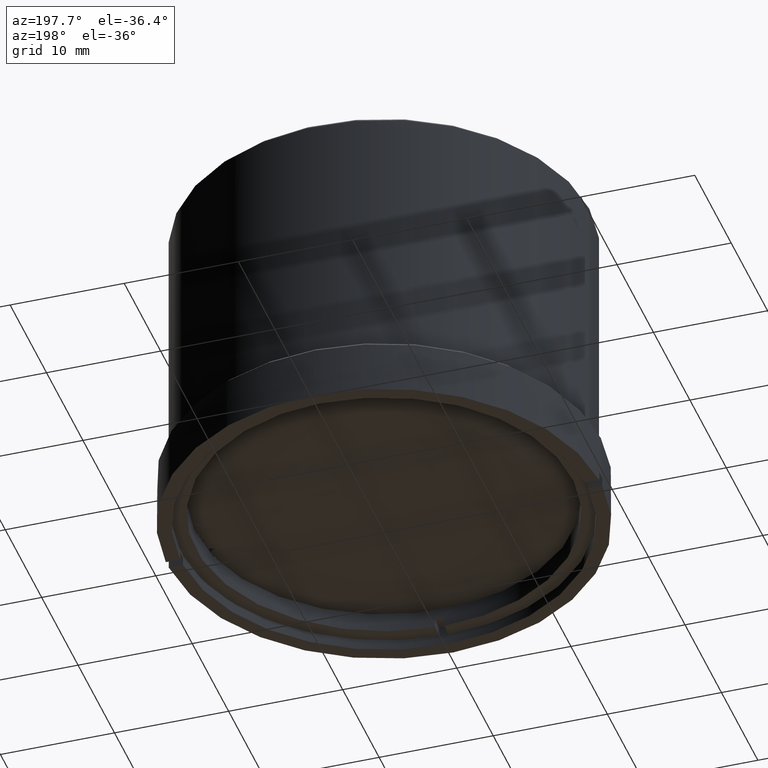
[diagram: clean part render]
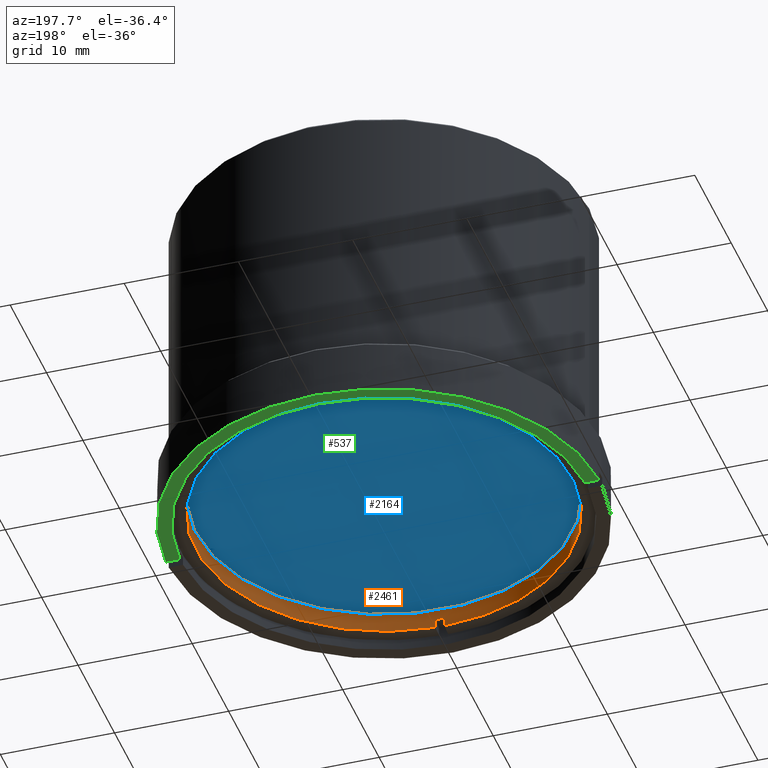
[diagram: same view with three faces highlighted in distinct colors, each labeled with its STEP entity id]
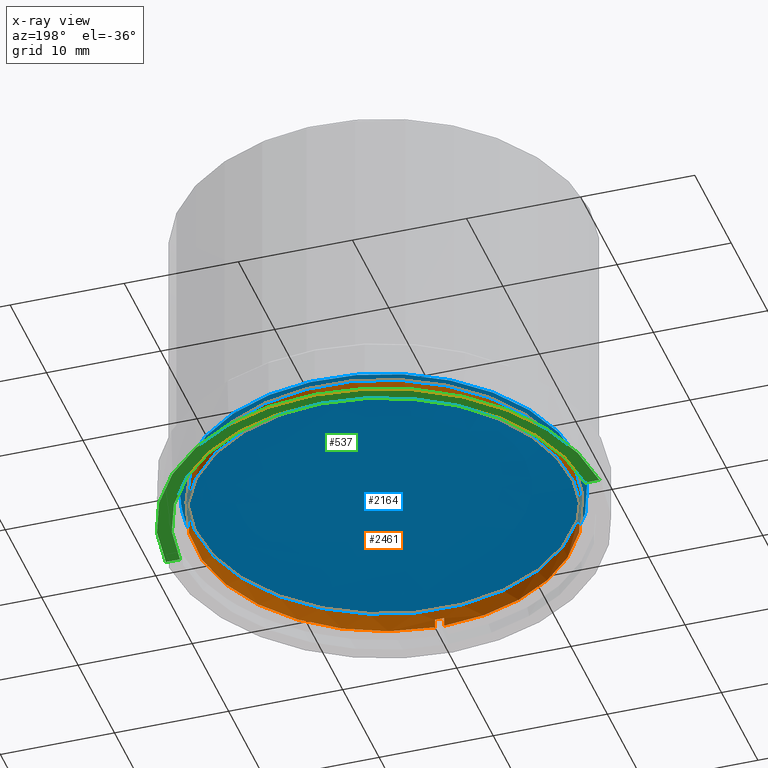
[diagram: x-ray of the same camera — body ghosted, the three highlighted faces saturated]
A machine part, auxiliary view with three faces highlighted in distinct colors.
The next image is the same camera in x-ray (body ghosted, the three faces saturated) — at least one of them is partly hidden behind the body in this view.
Their STEP definitions:

[orange] entity #2461 — the highlighted cylindrical surface (bore or boss wall) has radius 16.5 mm, axis along (0, -0, -1).
#28 = CARTESIAN_POINT ( 'NONE',  ( 0.000000000000000000, 0.000000000000000000, 173.0372901561294725 ) ) ;
#66 = DIRECTION ( 'NONE',  ( -0.000000000000000000, -0.000000000000000000, -1.000000000000000000 ) ) ;
#76 = ORIENTED_EDGE ( 'NONE', *, *, #971, .F. ) ;
#89 = CARTESIAN_POINT ( 'NONE',  ( 0.4000000000000001887, -16.49515080258436939, 193.8792013154986478 ) ) ;
#96 = CIRCLE ( 'NONE', #1657, 16.49999999999999289 ) ;
#169 = ORIENTED_EDGE ( 'NONE', *, *, #298, .F. ) ;
#177 = CARTESIAN_POINT ( 'NONE',  ( 0.000000000000000000, 0.000000000000000000, 193.8792013154986478 ) ) ;
#182 = EDGE_LOOP ( 'NONE', ( #749, #1570, #2250, #2525, #169, #313, #2363, #1100 ) ) ;
#193 = AXIS2_PLACEMENT_3D ( 'NONE', #28, #892, #671 ) ;
#286 = VERTEX_POINT ( 'NONE', #1212 ) ;
#298 = EDGE_CURVE ( 'NONE', #1770, #286, #96, .T. ) ;
#302 = CARTESIAN_POINT ( 'NONE',  ( -0.3999999999999941380, -16.49515080258436939, 173.0372901561294725 ) ) ;
#313 = ORIENTED_EDGE ( 'NONE', *, *, #2127, .F. ) ;
#314 = LINE ( 'NONE', #302, #2730 ) ;
#346 = EDGE_CURVE ( 'NONE', #1591, #1434, #314, .T. ) ;
#352 = VERTEX_POINT ( 'NONE', #89 ) ;
#368 = AXIS2_PLACEMENT_3D ( 'NONE', #1136, #887, #444 ) ;
#384 = CARTESIAN_POINT ( 'NONE',  ( 0.4000000000000000222, 16.49515080258436939, 193.8792013154986478 ) ) ;
#414 = CIRCLE ( 'NONE', #960, 16.49999999999999289 ) ;
#444 = DIRECTION ( 'NONE',  ( -1.000000000000000000, 2.131628207280300558E-14, 0.000000000000000000 ) ) ;
#474 = LINE ( 'NONE', #1508, #1307 ) ;
#568 = DIRECTION ( 'NONE',  ( -1.000000000000000000, 0.000000000000000000, 0.000000000000000000 ) ) ;
#599 = VECTOR ( 'NONE', #1876, 1000.000000000000000 ) ;
#671 = DIRECTION ( 'NONE',  ( -1.000000000000000000, 0.000000000000000000, 0.000000000000000000 ) ) ;
#749 = ORIENTED_EDGE ( 'NONE', *, *, #1463, .F. ) ;
#774 = EDGE_CURVE ( 'NONE', #286, #2088, #2289, .T. ) ;
#794 = CARTESIAN_POINT ( 'NONE',  ( 0.4000000000000001887, -16.49515080258436939, 173.0372901561294725 ) ) ;
#866 = CIRCLE ( 'NONE', #368, 16.49999999999999289 ) ;
#887 = DIRECTION ( 'NONE',  ( 0.000000000000000000, 0.000000000000000000, 1.000000000000000000 ) ) ;
#892 = DIRECTION ( 'NONE',  ( -0.000000000000000000, -0.000000000000000000, -1.000000000000000000 ) ) ;
#960 = AXIS2_PLACEMENT_3D ( 'NONE', #2330, #2100, #2757 ) ;
#971 = EDGE_CURVE ( 'NONE', #2453, #2453, #2515, .T. ) ;
#1097 = CARTESIAN_POINT ( 'NONE',  ( -0.3999999999999969136, -16.49515080258436939, 193.0792013154986648 ) ) ;
#1100 = ORIENTED_EDGE ( 'NONE', *, *, #346, .F. ) ;
#1136 = CARTESIAN_POINT ( 'NONE',  ( 0.000000000000000000, 0.000000000000000000, 193.8792013154986478 ) ) ;
#1212 = CARTESIAN_POINT ( 'NONE',  ( 0.3999999999999999667, 16.49515080258436939, 193.0792013154986648 ) ) ;
#1307 = VECTOR ( 'NONE', #66, 1000.000000000000000 ) ;
#1311 = CARTESIAN_POINT ( 'NONE',  ( -16.49999999999999289, 0.000000000000000000, 194.8292013154986648 ) ) ;
#1314 = FACE_OUTER_BOUND ( 'NONE', #2618, .T. ) ;
#1335 = VERTEX_POINT ( 'NONE', #1584 ) ;
#1403 = CARTESIAN_POINT ( 'NONE',  ( 0.4000000000000012434, -16.49515080258436583, 193.0792013154986648 ) ) ;
#1434 = VERTEX_POINT ( 'NONE', #2073 ) ;
#1449 = CIRCLE ( 'NONE', #1981, 16.49999999999999289 ) ;
#1451 = LINE ( 'NONE', #794, #599 ) ;
#1463 = EDGE_CURVE ( 'NONE', #1335, #1591, #414, .T. ) ;
#1482 = DIRECTION ( 'NONE',  ( 0.000000000000000000, 0.000000000000000000, 1.000000000000000000 ) ) ;
#1485 = VECTOR ( 'NONE', #1875, 1000.000000000000000 ) ;
#1498 = DIRECTION ( 'NONE',  ( -1.000000000000000000, 0.000000000000000000, 0.000000000000000000 ) ) ;
#1508 = CARTESIAN_POINT ( 'NONE',  ( -0.3999999999999981903, 16.49515080258436939, 173.0372901561294725 ) ) ;
#1517 = DIRECTION ( 'NONE',  ( -1.000000000000000000, 0.000000000000000000, 0.000000000000000000 ) ) ;
#1529 = CARTESIAN_POINT ( 'NONE',  ( 0.000000000000000000, 0.000000000000000000, 194.8292013154986648 ) ) ;
#1570 = ORIENTED_EDGE ( 'NONE', *, *, #1993, .F. ) ;
#1584 = CARTESIAN_POINT ( 'NONE',  ( -0.3999999999999986899, 16.49515080258436939, 193.0792013154986648 ) ) ;
#1591 = VERTEX_POINT ( 'NONE', #1097 ) ;
#1621 = CARTESIAN_POINT ( 'NONE',  ( 0.000000000000000000, 0.000000000000000000, 193.0792013154986648 ) ) ;
#1625 = VERTEX_POINT ( 'NONE', #2247 ) ;
#1657 = AXIS2_PLACEMENT_3D ( 'NONE', #1621, #2487, #568 ) ;
#1689 = CYLINDRICAL_SURFACE ( 'NONE', #193, 16.49999999999999289 ) ;
#1770 = VERTEX_POINT ( 'NONE', #1403 ) ;
#1867 = EDGE_CURVE ( 'NONE', #2088, #1625, #866, .T. ) ;
#1875 = DIRECTION ( 'NONE',  ( 0.000000000000000000, 0.000000000000000000, 1.000000000000000000 ) ) ;
#1876 = DIRECTION ( 'NONE',  ( -0.000000000000000000, -0.000000000000000000, -1.000000000000000000 ) ) ;
#1949 = FACE_OUTER_BOUND ( 'NONE', #182, .T. ) ;
#1981 = AXIS2_PLACEMENT_3D ( 'NONE', #177, #1482, #1498 ) ;
#1993 = EDGE_CURVE ( 'NONE', #1625, #1335, #474, .T. ) ;
#2073 = CARTESIAN_POINT ( 'NONE',  ( -0.3999999999999935829, -16.49515080258436939, 193.8792013154986478 ) ) ;
#2088 = VERTEX_POINT ( 'NONE', #384 ) ;
#2100 = DIRECTION ( 'NONE',  ( 0.000000000000000000, 0.000000000000000000, 1.000000000000000000 ) ) ;
#2127 = EDGE_CURVE ( 'NONE', #352, #1770, #1451, .T. ) ;
#2247 = CARTESIAN_POINT ( 'NONE',  ( -0.3999999999999989675, 16.49515080258436939, 193.8792013154986478 ) ) ;
#2250 = ORIENTED_EDGE ( 'NONE', *, *, #1867, .F. ) ;
#2251 = DIRECTION ( 'NONE',  ( 0.000000000000000000, 0.000000000000000000, 1.000000000000000000 ) ) ;
#2254 = AXIS2_PLACEMENT_3D ( 'NONE', #1529, #2588, #1517 ) ;
#2289 = LINE ( 'NONE', #2760, #1485 ) ;
#2330 = CARTESIAN_POINT ( 'NONE',  ( 0.000000000000000000, 0.000000000000000000, 193.0792013154986648 ) ) ;
#2363 = ORIENTED_EDGE ( 'NONE', *, *, #2709, .F. ) ;
#2453 = VERTEX_POINT ( 'NONE', #1311 ) ;
#2461 = ADVANCED_FACE ( 'NONE', ( #1949, #1314 ), #1689, .F. ) ;
#2487 = DIRECTION ( 'NONE',  ( 0.000000000000000000, 0.000000000000000000, 1.000000000000000000 ) ) ;
#2515 = CIRCLE ( 'NONE', #2254, 16.49999999999999289 ) ;
#2525 = ORIENTED_EDGE ( 'NONE', *, *, #774, .F. ) ;
#2588 = DIRECTION ( 'NONE',  ( -0.000000000000000000, -0.000000000000000000, -1.000000000000000000 ) ) ;
#2618 = EDGE_LOOP ( 'NONE', ( #76 ) ) ;
#2709 = EDGE_CURVE ( 'NONE', #1434, #352, #1449, .T. ) ;
#2730 = VECTOR ( 'NONE', #2251, 1000.000000000000000 ) ;
#2757 = DIRECTION ( 'NONE',  ( -1.000000000000000000, 0.000000000000000000, 0.000000000000000000 ) ) ;
#2760 = CARTESIAN_POINT ( 'NONE',  ( 0.3999999999999998557, 16.49515080258436939, 173.0372901561294725 ) ) ;

[blue] entity #2164 — the highlighted face is a freeform B-spline surface patch.
#103 = CARTESIAN_POINT ( 'NONE',  ( -17.00000000000000000, 0.000000000000000000, 2.719212056980059966 ) ) ;
#158 = CARTESIAN_POINT ( 'NONE',  ( 17.28991034035671248, 3.469446951953614189E-15, 2.815292392986987746 ) ) ;
#325 = CARTESIAN_POINT ( 'NONE',  ( 0.000000000000000000, 0.000000000000000000, 2.719212056980059966 ) ) ;
#411 = CARTESIAN_POINT ( 'NONE',  ( 27.64194707079962754, 19.74373835535002897, 10.25001160613913953 ) ) ;
#595 = CARTESIAN_POINT ( 'NONE',  ( -4.638900653483567282, 7.750168308865976741, -0.5487911481949637738 ) ) ;
#622 = CARTESIAN_POINT ( 'NONE',  ( 13.27122800318624307, -23.00439613573182029, 5.442623585397479147 ) ) ;
#806 = CARTESIAN_POINT ( 'NONE',  ( 4.049176320177816812, -3.758227020300565435, -1.614085553582661037 ) ) ;
#851 = CARTESIAN_POINT ( 'NONE',  ( -1.769752173187300714, -20.95151807214567441, 0.4110153840328079622 ) ) ;
#1006 = CARTESIAN_POINT ( 'NONE',  ( 17.28991034035672669, 2.647856146135734781E-15, 2.815292392986997960 ) ) ;
#1059 = CARTESIAN_POINT ( 'NONE',  ( 17.28991034035671603, -9.725585166750842478E-16, 2.815292392986989078 ) ) ;
#1102 = CARTESIAN_POINT ( 'NONE',  ( -8.268664292441469499, 32.19119659690471735, 5.772221602480928304 ) ) ;
#1122 = VERTEX_POINT ( 'NONE', #103 ) ;
#1135 =( BOUNDED_SURFACE ( )  B_SPLINE_SURFACE ( 3, 3, ( 
 ( #1652, #1894, #1006, #1856, #2081, #1059, #158 ),
 ( #1865, #2721, #806, #2748, #1466, #1683, #2538 ),
 ( #622, #851, #1695, #595, #2335, #2550, #411 ),
 ( #1264, #2121, #1909, #2761, #1102, #2378, #1291 ) ),
 .UNSPECIFIED., .F., .F., .T. ) 
 B_SPLINE_SURFACE_WITH_KNOTS ( ( 4, 4 ),
 ( 4, 3, 4 ),
 ( 0.000000000000000000, 1.000000000000000000 ),
 ( 0.000000000000000000, 0.5000000000000000000, 1.000000000000000000 ),
 .UNSPECIFIED. ) 
 GEOMETRIC_REPRESENTATION_ITEM ( )  RATIONAL_B_SPLINE_SURFACE ( (
 ( 1.000000000000000000, 0.7522312393163147481, 0.7522312393163147481, 1.000000000000000000, 0.7522312393163147481, 0.7522312393163147481, 1.000000000000000000),
 ( 0.9657484377972049838, 0.7264661442319864104, 0.7264661442319864104, 0.9657484377972049838, 0.7264661442319864104, 0.7264661442319864104, 0.9657484377972049838),
 ( 0.9657484377972049838, 0.7264661442319864104, 0.7264661442319864104, 0.9657484377972049838, 0.7264661442319864104, 0.7264661442319864104, 0.9657484377972049838),
 ( 1.000000000000000000, 0.7522312393163147481, 0.7522312393163147481, 1.000000000000000000, 0.7522312393163147481, 0.7522312393163147481, 1.000000000000000000) ) ) 
 REPRESENTATION_ITEM ( '' )  SURFACE ( )  );
#1264 = CARTESIAN_POINT ( 'NONE',  ( 9.845227713934697533, -32.44605139639171654, 11.83180059993767230 ) ) ;
#1291 = CARTESIAN_POINT ( 'NONE',  ( 30.11409661706781193, 27.84712737751759448, 18.61227672645955877 ) ) ;
#1320 = EDGE_CURVE ( 'NONE', #1122, #1122, #2294, .T. ) ;
#1466 = CARTESIAN_POINT ( 'NONE',  ( 9.250078473449322658, 11.71273610109673946, 0.1257546444652254680 ) ) ;
#1652 = CARTESIAN_POINT ( 'NONE',  ( 17.28991034035671603, 8.295447662121091525E-15, 2.815292392987001069 ) ) ;
#1683 = CARTESIAN_POINT ( 'NONE',  ( 16.59089827581896870, 14.44013152919473342, 2.581454252417818118 ) ) ;
#1695 = CARTESIAN_POINT ( 'NONE',  ( -9.706198539045002960, -7.323366320764058024, -2.243937162668081076 ) ) ;
#1741 = EDGE_LOOP ( 'NONE', ( #2759 ) ) ;
#1811 = DIRECTION ( 'NONE',  ( -1.000000000000000000, 0.000000000000000000, 0.000000000000000000 ) ) ;
#1856 = CARTESIAN_POINT ( 'NONE',  ( 17.28991034035671959, 0.000000000000000000, 2.815292392986995740 ) ) ;
#1865 = CARTESIAN_POINT ( 'NONE',  ( 15.84080075976688029, -11.80546477620215207, 2.330526668621162312 ) ) ;
#1894 = CARTESIAN_POINT ( 'NONE',  ( 17.28991034035671603, 6.777746642311721337E-15, 2.815292392987000625 ) ) ;
#1909 = CARTESIAN_POINT ( 'NONE',  ( -22.56278500447146484, -10.32908312985611410, 0.9904577704320814968 ) ) ;
#2063 = FACE_OUTER_BOUND ( 'NONE', #1741, .T. ) ;
#2081 = CARTESIAN_POINT ( 'NONE',  ( 17.28991034035671248, -1.897126274761713130E-15, 2.815292392986994408 ) ) ;
#2121 = CARTESIAN_POINT ( 'NONE',  ( -11.36899642719379244, -29.55061407351489677, 4.735077984628271786 ) ) ;
#2164 = ADVANCED_FACE ( 'N', ( #2063 ), #1135, .T. ) ;
#2294 = CIRCLE ( 'NONE', #2435, 17.00000000000000000 ) ;
#2335 = CARTESIAN_POINT ( 'NONE',  ( 0.4283972320778678400, 22.82370293849600884, 1.146354866278152862 ) ) ;
#2378 = CARTESIAN_POINT ( 'NONE',  ( 11.90679013604218284, 39.68714986227203667, 12.52144810090274163 ) ) ;
#2433 = DIRECTION ( 'NONE',  ( -0.000000000000000000, -0.000000000000000000, 1.000000000000000000 ) ) ;
#2435 = AXIS2_PLACEMENT_3D ( 'NONE', #325, #2433, #1811 ) ;
#2538 = CARTESIAN_POINT ( 'NONE',  ( 23.21560932941636324, 10.13215066934950670, 4.797596423877589444 ) ) ;
#2550 = CARTESIAN_POINT ( 'NONE',  ( 14.73288501769660108, 28.13836746345632278, 5.931586760373590117 ) ) ;
#2721 = CARTESIAN_POINT ( 'NONE',  ( 8.122025590705739262, -10.75196267484245816, -0.2516090691909735333 ) ) ;
#2748 = CARTESIAN_POINT ( 'NONE',  ( 6.649627396813568403, 3.977254540398087013, -0.7441654545587177427 ) ) ;
#2759 = ORIENTED_EDGE ( 'NONE', *, *, #1320, .F. ) ;
#2761 = CARTESIAN_POINT ( 'NONE',  ( -15.41572464845646451, 10.93105673352430252, 3.381339686456505067 ) ) ;

[green] entity #537 — the highlighted planar face has unit normal (0, 0, -1).
#15 = ORIENTED_EDGE ( 'NONE', *, *, #1286, .T. ) ;
#53 = DIRECTION ( 'NONE',  ( -1.000000000000000000, 0.000000000000000000, 0.000000000000000000 ) ) ;
#88 = VERTEX_POINT ( 'NONE', #1168 ) ;
#268 = ORIENTED_EDGE ( 'NONE', *, *, #2518, .F. ) ;
#343 = CARTESIAN_POINT ( 'NONE',  ( 0.000000000000000000, 17.75000000000000355, 210.6772689990073673 ) ) ;
#417 = VERTEX_POINT ( 'NONE', #2643 ) ;
#537 = ADVANCED_FACE ( 'NONE', ( #2436 ), #2039, .T. ) ;
#550 = DIRECTION ( 'NONE',  ( -1.000000000000000000, 0.000000000000000000, -0.000000000000000000 ) ) ;
#551 = VECTOR ( 'NONE', #550, 1000.000000000000000 ) ;
#554 = DIRECTION ( 'NONE',  ( -1.000000000000000000, 0.000000000000000000, 0.000000000000000000 ) ) ;
#555 = EDGE_CURVE ( 'NONE', #1913, #88, #2111, .T. ) ;
#619 = EDGE_LOOP ( 'NONE', ( #1189, #268, #15, #2116 ) ) ;
#824 = CIRCLE ( 'NONE', #1265, 18.99999999999999645 ) ;
#905 = DIRECTION ( 'NONE',  ( 0.000000000000000000, 0.000000000000000000, 1.000000000000000000 ) ) ;
#1039 = AXIS2_PLACEMENT_3D ( 'NONE', #1367, #1413, #554 ) ;
#1073 = CARTESIAN_POINT ( 'NONE',  ( 17.74549238539184515, 0.4000000000000005218, 210.6772689990073673 ) ) ;
#1159 = DIRECTION ( 'NONE',  ( 0.000000000000000000, 0.000000000000000000, -1.000000000000000000 ) ) ;
#1166 = CARTESIAN_POINT ( 'NONE',  ( -18.99578900704047868, 0.4000000000000000222, 210.6772689990073673 ) ) ;
#1168 = CARTESIAN_POINT ( 'NONE',  ( -17.74549238539185225, 0.4000000000000001332, 210.6772689990073673 ) ) ;
#1189 = ORIENTED_EDGE ( 'NONE', *, *, #1390, .T. ) ;
#1213 = LINE ( 'NONE', #2474, #551 ) ;
#1265 = AXIS2_PLACEMENT_3D ( 'NONE', #1331, #905, #53 ) ;
#1286 = EDGE_CURVE ( 'NONE', #417, #1913, #2226, .T. ) ;
#1331 = CARTESIAN_POINT ( 'NONE',  ( 0.000000000000000000, 0.000000000000000000, 210.6772689990073673 ) ) ;
#1367 = CARTESIAN_POINT ( 'NONE',  ( 0.000000000000000000, 0.000000000000000000, 210.6772689990073673 ) ) ;
#1390 = EDGE_CURVE ( 'NONE', #88, #1598, #1213, .T. ) ;
#1413 = DIRECTION ( 'NONE',  ( 0.000000000000000000, 0.000000000000000000, 1.000000000000000000 ) ) ;
#1598 = VERTEX_POINT ( 'NONE', #1166 ) ;
#1828 = DIRECTION ( 'NONE',  ( -1.000000000000000000, 0.000000000000000000, -0.000000000000000000 ) ) ;
#1882 = AXIS2_PLACEMENT_3D ( 'NONE', #343, #1159, #1828 ) ;
#1913 = VERTEX_POINT ( 'NONE', #1073 ) ;
#2039 = PLANE ( 'NONE',  #1882 ) ;
#2111 = CIRCLE ( 'NONE', #1039, 17.75000000000000355 ) ;
#2116 = ORIENTED_EDGE ( 'NONE', *, *, #555, .T. ) ;
#2226 = LINE ( 'NONE', #2674, #2735 ) ;
#2436 = FACE_OUTER_BOUND ( 'NONE', #619, .T. ) ;
#2474 = CARTESIAN_POINT ( 'NONE',  ( 20.66710715111723928, 0.4000000000000000222, 210.6772689990073673 ) ) ;
#2518 = EDGE_CURVE ( 'NONE', #417, #1598, #824, .T. ) ;
#2639 = DIRECTION ( 'NONE',  ( -1.000000000000000000, 0.000000000000000000, -0.000000000000000000 ) ) ;
#2643 = CARTESIAN_POINT ( 'NONE',  ( 18.99578900704047868, 0.3999999999999997446, 210.6772689990073673 ) ) ;
#2674 = CARTESIAN_POINT ( 'NONE',  ( 0.000000000000000000, 0.4000000000000010214, 210.6772689990073673 ) ) ;
#2735 = VECTOR ( 'NONE', #2639, 1000.000000000000000 ) ;